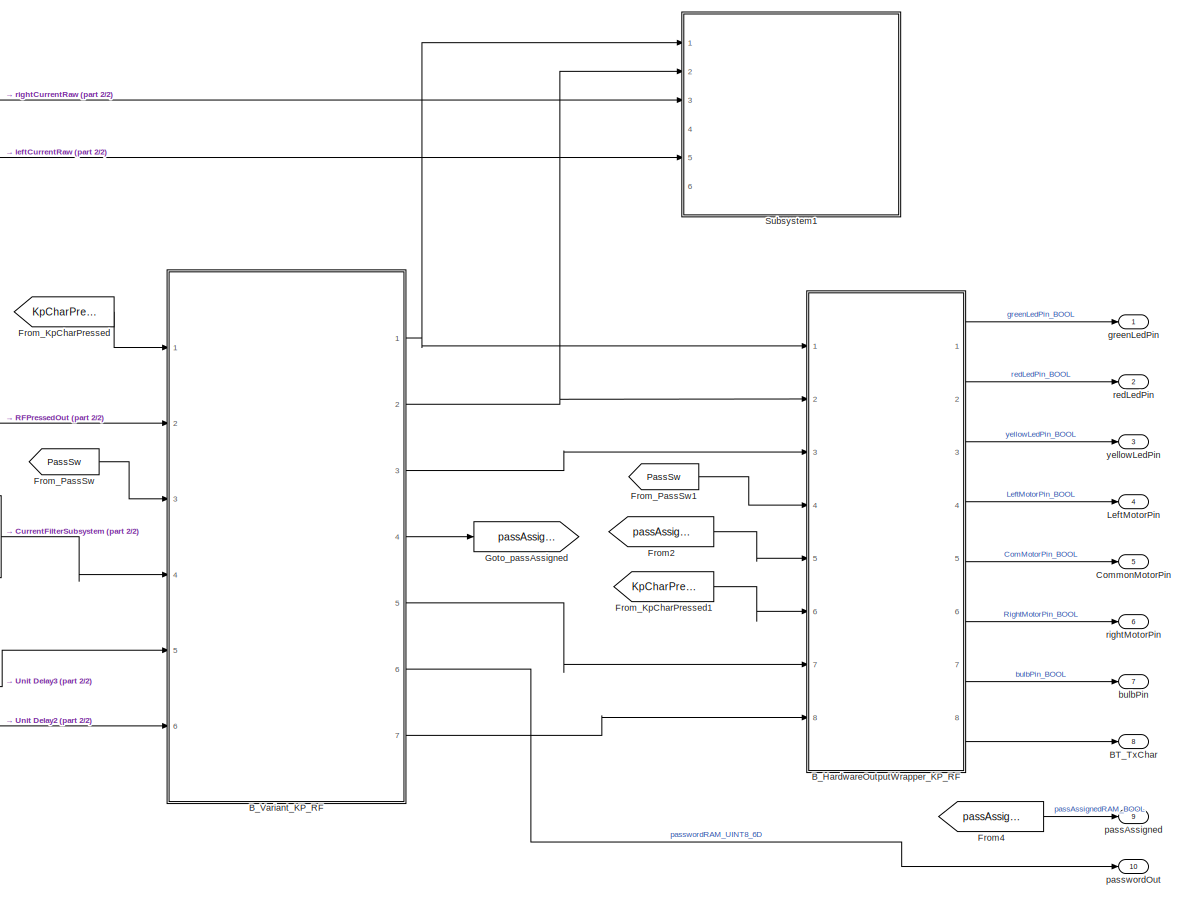
[diagram: root canvas - part 1/2, most of the canvas]
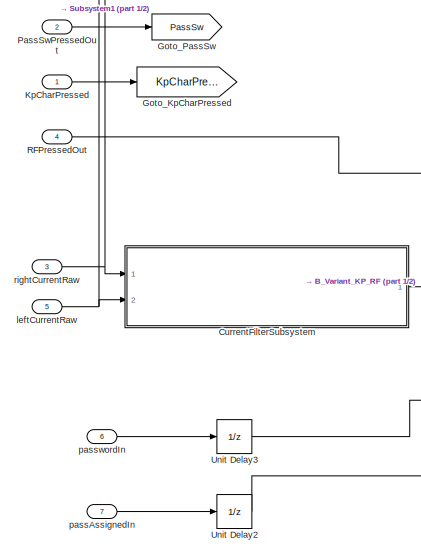
[diagram: root canvas - part 2/2, middle left region]
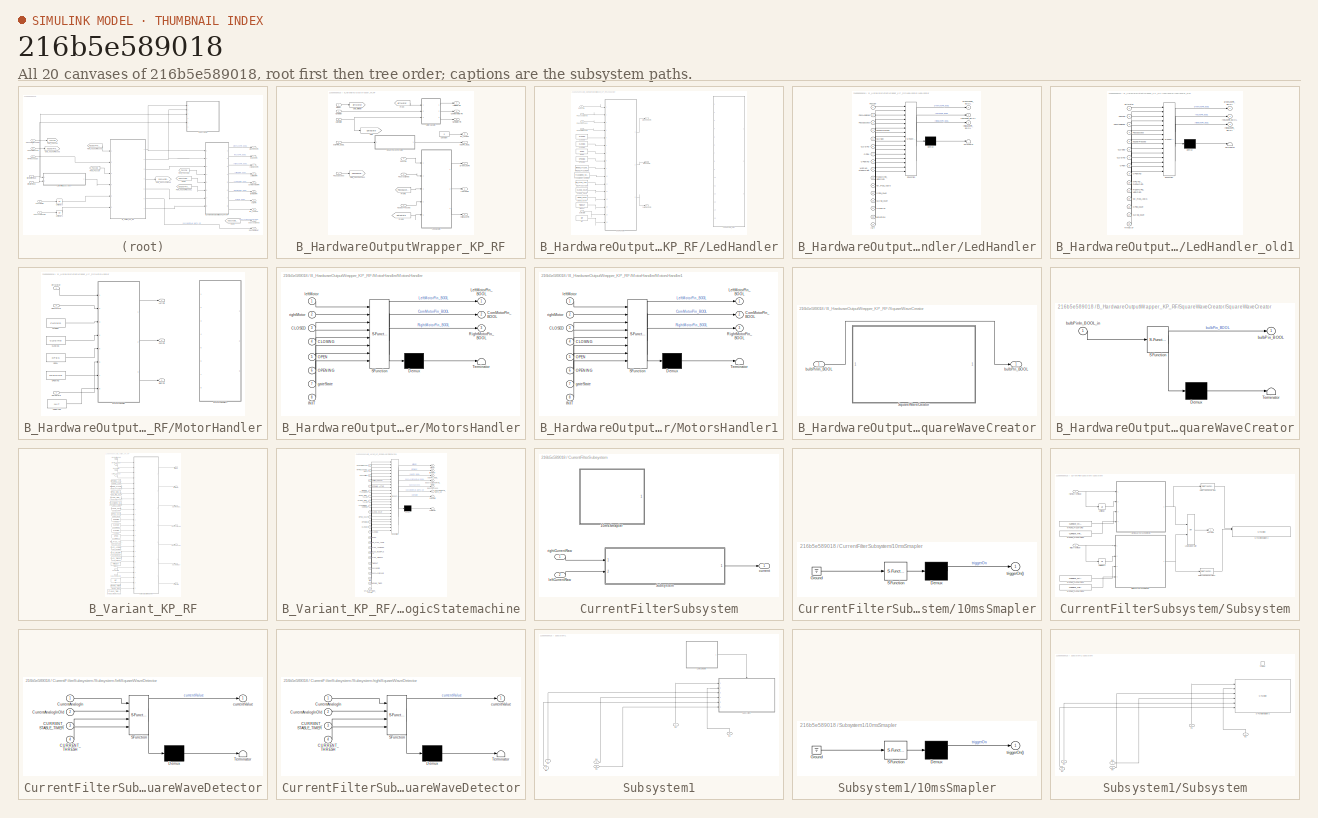
[diagram: thumbnail index - all 20 canvases of the model, root first then tree order]
MODEL slx_216b5e589018
KIND model
CONFIG AbsTol = auto
CONFIG FixedStep = auto
CONFIG MaxStep = auto
CONFIG MinStep = auto
CONFIG RelTol = 1e-3
CONFIG SampleTimeConstraint = Unconstrained
CONFIG Solver = FixedStepDiscrete
CONFIG SolverMode = Auto
CONFIG SolverName = FixedStepDiscrete
CONFIG StartTime = 0.0
CONFIG StopTime = 120
BLOCK [Outport] BT_TxChar
  IconDisplay = Port number
  OutDataTypeStr = double
  Port = 8
  PortDimensions = 1
  SampleTime = [0.001,0]
  SamplingMode = Sample based
  SignalType = real
BLOCK [SubSystem] B_HardwareOutputWrapper_KP_RF
  Ports = [8, 8]
  RequestExecContextInheritance = off
  Variant = off
  VariantControl = Variant2
BLOCK [Outport] B_HardwareOutputWrapper_KP_RF/BT_TxChar
  IconDisplay = Port number
  Port = 8
BLOCK [Outport] B_HardwareOutputWrapper_KP_RF/CommonMotorPin
  IconDisplay = Port number
  Port = 5
BLOCK [Constant] B_HardwareOutputWrapper_KP_RF/Constant
  SampleTime = -1
  Value = 0
BLOCK [From] B_HardwareOutputWrapper_KP_RF/From
  GotoTag = leftMotor
BLOCK [From] B_HardwareOutputWrapper_KP_RF/From2
  GotoTag = gateState
BLOCK [From] B_HardwareOutputWrapper_KP_RF/From6
  GotoTag = PassSuccess
BLOCK [Goto] B_HardwareOutputWrapper_KP_RF/Goto
  GotoTag = gateState
BLOCK [Goto] B_HardwareOutputWrapper_KP_RF/Goto_PassSuccess
  GotoTag = PassSuccess
BLOCK [Goto] B_HardwareOutputWrapper_KP_RF/Goto_leftMotor
  GotoTag = leftMotor
BLOCK [Inport] B_HardwareOutputWrapper_KP_RF/KpCharPressed
  IconDisplay = Port number
  Port = 6
BLOCK [SubSystem] B_HardwareOutputWrapper_KP_RF/LedHandler
  Ports = [5, 3]
  RequestExecContextInheritance = off
  Variant = off
BLOCK [Constant] B_HardwareOutputWrapper_KP_RF/LedHandler/CLOSED
  SampleTime = -1
  Value = CLOSED
BLOCK [Constant] B_HardwareOutputWrapper_KP_RF/LedHandler/CLOSE_CHAR
  SampleTime = -1
  Value = CLOSE_CHAR
BLOCK [Constant] B_HardwareOutputWrapper_KP_RF/LedHandler/CLOSING
  SampleTime = -1
  Value = CLOSING
BLOCK [Constant] B_HardwareOutputWrapper_KP_RF/LedHandler/INIT
  SampleTime = -1
  Value = INIT
BLOCK [Inport] B_HardwareOutputWrapper_KP_RF/LedHandler/KpCharPressed
  IconDisplay = Port number
  Port = 4
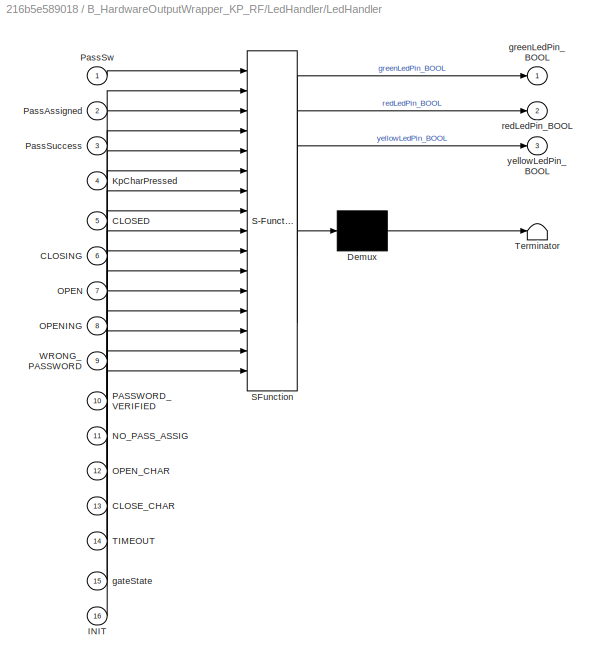
BLOCK [SubSystem] B_HardwareOutputWrapper_KP_RF/LedHandler/LedHandler
  ErrorFcn = Stateflow.Translate.translate
  PermitHierarchicalResolution = ExplicitOnly
  Ports = [16, 3]
  RequestExecContextInheritance = off
  SFBlockType = Chart
  TreatAsAtomicUnit = on
  Variant = off
BLOCK [Demux] B_HardwareOutputWrapper_KP_RF/LedHandler/LedHandler/ Demux 
  Outputs = 1
  Ports = [1, 1]
BLOCK [S-Function] B_HardwareOutputWrapper_KP_RF/LedHandler/LedHandler/ SFunction 
  EnableBusSupport = on
  FunctionName = sf_sfun
  PortCounts = [16 4]
  Ports = [16, 4]
  SFunctionDeploymentMode = off
  Tag = Stateflow S-Function GATE_B 16
BLOCK [Terminator] B_HardwareOutputWrapper_KP_RF/LedHandler/LedHandler/ Terminator 
BLOCK [Inport] B_HardwareOutputWrapper_KP_RF/LedHandler/LedHandler/CLOSED
  IconDisplay = Port number
  Port = 5
BLOCK [Inport] B_HardwareOutputWrapper_KP_RF/LedHandler/LedHandler/CLOSE_CHAR
  IconDisplay = Port number
  Port = 13
BLOCK [Inport] B_HardwareOutputWrapper_KP_RF/LedHandler/LedHandler/CLOSING
  IconDisplay = Port number
  Port = 6
BLOCK [Inport] B_HardwareOutputWrapper_KP_RF/LedHandler/LedHandler/INIT
  IconDisplay = Port number
  Port = 16
BLOCK [Inport] B_HardwareOutputWrapper_KP_RF/LedHandler/LedHandler/KpCharPressed
  IconDisplay = Port number
  Port = 4
BLOCK [Inport] B_HardwareOutputWrapper_KP_RF/LedHandler/LedHandler/NO_PASS_ASSIG
  IconDisplay = Port number
  Port = 11
BLOCK [Inport] B_HardwareOutputWrapper_KP_RF/LedHandler/LedHandler/OPEN
  IconDisplay = Port number
  Port = 7
BLOCK [Inport] B_HardwareOutputWrapper_KP_RF/LedHandler/LedHandler/OPENING
  IconDisplay = Port number
  Port = 8
BLOCK [Inport] B_HardwareOutputWrapper_KP_RF/LedHandler/LedHandler/OPEN_CHAR
  IconDisplay = Port number
  Port = 12
BLOCK [Inport] B_HardwareOutputWrapper_KP_RF/LedHandler/LedHandler/PASSWORD_VERIFIED
  IconDisplay = Port number
  Port = 10
BLOCK [Inport] B_HardwareOutputWrapper_KP_RF/LedHandler/LedHandler/PassAssigned
  IconDisplay = Port number
  Port = 2
BLOCK [Inport] B_HardwareOutputWrapper_KP_RF/LedHandler/LedHandler/PassSuccess
  IconDisplay = Port number
  Port = 3
BLOCK [Inport] B_HardwareOutputWrapper_KP_RF/LedHandler/LedHandler/PassSw
  IconDisplay = Port number
BLOCK [Inport] B_HardwareOutputWrapper_KP_RF/LedHandler/LedHandler/TIMEOUT
  IconDisplay = Port number
  Port = 14
BLOCK [Inport] B_HardwareOutputWrapper_KP_RF/LedHandler/LedHandler/WRONG_PASSWORD
  IconDisplay = Port number
  Port = 9
BLOCK [Inport] B_HardwareOutputWrapper_KP_RF/LedHandler/LedHandler/gateState
  IconDisplay = Port number
  Port = 15
BLOCK [Outport] B_HardwareOutputWrapper_KP_RF/LedHandler/LedHandler/greenLedPin_BOOL
  IconDisplay = Port number
BLOCK [Outport] B_HardwareOutputWrapper_KP_RF/LedHandler/LedHandler/redLedPin_BOOL
  IconDisplay = Port number
  Port = 2
BLOCK [Outport] B_HardwareOutputWrapper_KP_RF/LedHandler/LedHandler/yellowLedPin_BOOL
  IconDisplay = Port number
  Port = 3
BLOCK [SubSystem] B_HardwareOutputWrapper_KP_RF/LedHandler/LedHandler_old1
  Commented = on
  ErrorFcn = Stateflow.Translate.translate
  PermitHierarchicalResolution = ExplicitOnly
  Ports = [15, 3]
  RequestExecContextInheritance = off
  SFBlockType = Chart
  TreatAsAtomicUnit = on
  Variant = off
BLOCK [Demux] B_HardwareOutputWrapper_KP_RF/LedHandler/LedHandler_old1/ Demux 
  Outputs = 1
  Ports = [1, 1]
BLOCK [S-Function] B_HardwareOutputWrapper_KP_RF/LedHandler/LedHandler_old1/ SFunction 
  EnableBusSupport = on
  FunctionName = sf_sfun
  PortCounts = [15 4]
  Ports = [15, 4]
  SFunctionDeploymentMode = off
  Tag = Stateflow S-Function GATE_B 13
BLOCK [Terminator] B_HardwareOutputWrapper_KP_RF/LedHandler/LedHandler_old1/ Terminator 
BLOCK [Inport] B_HardwareOutputWrapper_KP_RF/LedHandler/LedHandler_old1/CLOSED
  IconDisplay = Port number
  Port = 6
BLOCK [Inport] B_HardwareOutputWrapper_KP_RF/LedHandler/LedHandler_old1/CLOSE_CHAR
  IconDisplay = Port number
  Port = 14
BLOCK [Inport] B_HardwareOutputWrapper_KP_RF/LedHandler/LedHandler_old1/CLOSING
  IconDisplay = Port number
  Port = 7
BLOCK [Inport] B_HardwareOutputWrapper_KP_RF/LedHandler/LedHandler_old1/KpCharPressed
  IconDisplay = Port number
  Port = 5
BLOCK [Inport] B_HardwareOutputWrapper_KP_RF/LedHandler/LedHandler_old1/NO_PASS_ASSIG
  IconDisplay = Port number
  Port = 12
BLOCK [Inport] B_HardwareOutputWrapper_KP_RF/LedHandler/LedHandler_old1/OPEN
  IconDisplay = Port number
  Port = 8
BLOCK [Inport] B_HardwareOutputWrapper_KP_RF/LedHandler/LedHandler_old1/OPENING
  IconDisplay = Port number
  Port = 9
BLOCK [Inport] B_HardwareOutputWrapper_KP_RF/LedHandler/LedHandler_old1/OPEN_CHAR
  IconDisplay = Port number
  Port = 13
BLOCK [Inport] B_HardwareOutputWrapper_KP_RF/LedHandler/LedHandler_old1/PASSWORD_VERIFIED
  IconDisplay = Port number
  Port = 11
BLOCK [Inport] B_HardwareOutputWrapper_KP_RF/LedHandler/LedHandler_old1/PassAssigned
  IconDisplay = Port number
  Port = 3
BLOCK [Inport] B_HardwareOutputWrapper_KP_RF/LedHandler/LedHandler_old1/PassSuccess
  IconDisplay = Port number
  Port = 4
BLOCK [Inport] B_HardwareOutputWrapper_KP_RF/LedHandler/LedHandler_old1/PassSw
  IconDisplay = Port number
  Port = 2
BLOCK [Inport] B_HardwareOutputWrapper_KP_RF/LedHandler/LedHandler_old1/TIMEOUT
  IconDisplay = Port number
  Port = 15
BLOCK [Inport] B_HardwareOutputWrapper_KP_RF/LedHandler/LedHandler_old1/WRONG_PASSWORD
  IconDisplay = Port number
  Port = 10
BLOCK [Outport] B_HardwareOutputWrapper_KP_RF/LedHandler/LedHandler_old1/greenLedPin_BOOL
  IconDisplay = Port number
BLOCK [Inport] B_HardwareOutputWrapper_KP_RF/LedHandler/LedHandler_old1/leftMotor
  IconDisplay = Port number
BLOCK [Outport] B_HardwareOutputWrapper_KP_RF/LedHandler/LedHandler_old1/redLedPin_BOOL
  IconDisplay = Port number
  Port = 2
BLOCK [Outport] B_HardwareOutputWrapper_KP_RF/LedHandler/LedHandler_old1/yellowLedPin_BOOL
  IconDisplay = Port number
  Port = 3
BLOCK [Constant] B_HardwareOutputWrapper_KP_RF/LedHandler/NO_PASS_ASSIG
  SampleTime = -1
  Value = NO_PASS_ASSIG
BLOCK [Constant] B_HardwareOutputWrapper_KP_RF/LedHandler/OPEN
  SampleTime = -1
  Value = OPEN
BLOCK [Constant] B_HardwareOutputWrapper_KP_RF/LedHandler/OPENING
  SampleTime = -1
  Value = OPENING
BLOCK [Constant] B_HardwareOutputWrapper_KP_RF/LedHandler/OPEN_CHAR
  SampleTime = -1
  Value = OPEN_CHAR
BLOCK [Constant] B_HardwareOutputWrapper_KP_RF/LedHandler/PASSWORD_VERIFIED
  SampleTime = -1
  Value = PASSWORD_VERIFIED
BLOCK [Inport] B_HardwareOutputWrapper_KP_RF/LedHandler/PassAssigned
  IconDisplay = Port number
  Port = 2
BLOCK [Inport] B_HardwareOutputWrapper_KP_RF/LedHandler/PassSuccess
  IconDisplay = Port number
  Port = 3
BLOCK [Constant] B_HardwareOutputWrapper_KP_RF/LedHandler/TIMEOUT
  SampleTime = -1
  Value = TIMEOUT
BLOCK [Constant] B_HardwareOutputWrapper_KP_RF/LedHandler/WRONG_PASSWORD
  SampleTime = -1
  Value = WRONG_PASSWORD
BLOCK [Inport] B_HardwareOutputWrapper_KP_RF/LedHandler/gateState
  IconDisplay = Port number
  Port = 5
BLOCK [Outport] B_HardwareOutputWrapper_KP_RF/LedHandler/greenLedPin
  IconDisplay = Port number
BLOCK [Inport] B_HardwareOutputWrapper_KP_RF/LedHandler/passSw
  IconDisplay = Port number
BLOCK [Outport] B_HardwareOutputWrapper_KP_RF/LedHandler/redLedPin
  IconDisplay = Port number
  Port = 2
BLOCK [Outport] B_HardwareOutputWrapper_KP_RF/LedHandler/yellowLedPin
  IconDisplay = Port number
  Port = 3
BLOCK [Outport] B_HardwareOutputWrapper_KP_RF/LeftMotorPin
  IconDisplay = Port number
  Port = 4
BLOCK [SubSystem] B_HardwareOutputWrapper_KP_RF/MotorHandler
  Ports = [3, 3]
  RequestExecContextInheritance = off
  Variant = off
BLOCK [Constant] B_HardwareOutputWrapper_KP_RF/MotorHandler/CLOSED
  SampleTime = -1
  Value = CLOSED
BLOCK [Constant] B_HardwareOutputWrapper_KP_RF/MotorHandler/CLOSING
  SampleTime = -1
  Value = CLOSING
BLOCK [Outport] B_HardwareOutputWrapper_KP_RF/MotorHandler/ComPin
  IconDisplay = Port number
  Port = 2
BLOCK [Outport] B_HardwareOutputWrapper_KP_RF/MotorHandler/LeftPin
  IconDisplay = Port number
BLOCK [SubSystem] B_HardwareOutputWrapper_KP_RF/MotorHandler/MotorsHandler
  ErrorFcn = Stateflow.Translate.translate
  PermitHierarchicalResolution = ExplicitOnly
  Ports = [8, 3]
  RequestExecContextInheritance = off
  SFBlockType = Chart
  TreatAsAtomicUnit = on
  Variant = off
BLOCK [Demux] B_HardwareOutputWrapper_KP_RF/MotorHandler/MotorsHandler/ Demux 
  Outputs = 1
  Ports = [1, 1]
BLOCK [S-Function] B_HardwareOutputWrapper_KP_RF/MotorHandler/MotorsHandler/ SFunction 
  EnableBusSupport = on
  FunctionName = sf_sfun
  PortCounts = [8 4]
  Ports = [8, 4]
  SFunctionDeploymentMode = off
  Tag = Stateflow S-Function GATE_B 19
BLOCK [Terminator] B_HardwareOutputWrapper_KP_RF/MotorHandler/MotorsHandler/ Terminator 
BLOCK [Inport] B_HardwareOutputWrapper_KP_RF/MotorHandler/MotorsHandler/CLOSED
  IconDisplay = Port number
  Port = 3
BLOCK [Inport] B_HardwareOutputWrapper_KP_RF/MotorHandler/MotorsHandler/CLOSING
  IconDisplay = Port number
  Port = 4
BLOCK [Outport] B_HardwareOutputWrapper_KP_RF/MotorHandler/MotorsHandler/ComMotorPin_BOOL
  IconDisplay = Port number
  Port = 2
BLOCK [Inport] B_HardwareOutputWrapper_KP_RF/MotorHandler/MotorsHandler/INIT
  IconDisplay = Port number
  Port = 8
BLOCK [Outport] B_HardwareOutputWrapper_KP_RF/MotorHandler/MotorsHandler/LeftMotorPin_BOOL
  IconDisplay = Port number
BLOCK [Inport] B_HardwareOutputWrapper_KP_RF/MotorHandler/MotorsHandler/OPEN
  IconDisplay = Port number
  Port = 5
BLOCK [Inport] B_HardwareOutputWrapper_KP_RF/MotorHandler/MotorsHandler/OPENING
  IconDisplay = Port number
  Port = 6
BLOCK [Outport] B_HardwareOutputWrapper_KP_RF/MotorHandler/MotorsHandler/RightMotorPin_BOOL
  IconDisplay = Port number
  Port = 3
BLOCK [Inport] B_HardwareOutputWrapper_KP_RF/MotorHandler/MotorsHandler/gateState
  IconDisplay = Port number
  Port = 7
BLOCK [Inport] B_HardwareOutputWrapper_KP_RF/MotorHandler/MotorsHandler/leftMotor
  IconDisplay = Port number
BLOCK [Inport] B_HardwareOutputWrapper_KP_RF/MotorHandler/MotorsHandler/rightMotor
  IconDisplay = Port number
  Port = 2
BLOCK [SubSystem] B_HardwareOutputWrapper_KP_RF/MotorHandler/MotorsHandler1
  Commented = on
  ErrorFcn = Stateflow.Translate.translate
  PermitHierarchicalResolution = ExplicitOnly
  Ports = [8, 3]
  RequestExecContextInheritance = off
  SFBlockType = Chart
  TreatAsAtomicUnit = on
  Variant = off
BLOCK [Demux] B_HardwareOutputWrapper_KP_RF/MotorHandler/MotorsHandler1/ Demux 
  Outputs = 1
  Ports = [1, 1]
BLOCK [S-Function] B_HardwareOutputWrapper_KP_RF/MotorHandler/MotorsHandler1/ SFunction 
  EnableBusSupport = on
  FunctionName = sf_sfun
  PortCounts = [8 4]
  Ports = [8, 4]
  SFunctionDeploymentMode = off
  Tag = Stateflow S-Function GATE_B 2
BLOCK [Terminator] B_HardwareOutputWrapper_KP_RF/MotorHandler/MotorsHandler1/ Terminator 
BLOCK [Inport] B_HardwareOutputWrapper_KP_RF/MotorHandler/MotorsHandler1/CLOSED
  IconDisplay = Port number
  Port = 3
BLOCK [Inport] B_HardwareOutputWrapper_KP_RF/MotorHandler/MotorsHandler1/CLOSING
  IconDisplay = Port number
  Port = 4
BLOCK [Outport] B_HardwareOutputWrapper_KP_RF/MotorHandler/MotorsHandler1/ComMotorPin_BOOL
  IconDisplay = Port number
  Port = 2
BLOCK [Inport] B_HardwareOutputWrapper_KP_RF/MotorHandler/MotorsHandler1/INIT
  IconDisplay = Port number
  Port = 8
BLOCK [Outport] B_HardwareOutputWrapper_KP_RF/MotorHandler/MotorsHandler1/LeftMotorPin_BOOL
  IconDisplay = Port number
BLOCK [Inport] B_HardwareOutputWrapper_KP_RF/MotorHandler/MotorsHandler1/OPEN
  IconDisplay = Port number
  Port = 5
BLOCK [Inport] B_HardwareOutputWrapper_KP_RF/MotorHandler/MotorsHandler1/OPENING
  IconDisplay = Port number
  Port = 6
BLOCK [Outport] B_HardwareOutputWrapper_KP_RF/MotorHandler/MotorsHandler1/RightMotorPin_BOOL
  IconDisplay = Port number
  Port = 3
BLOCK [Inport] B_HardwareOutputWrapper_KP_RF/MotorHandler/MotorsHandler1/gateState
  IconDisplay = Port number
  Port = 7
BLOCK [Inport] B_HardwareOutputWrapper_KP_RF/MotorHandler/MotorsHandler1/leftMotor
  IconDisplay = Port number
BLOCK [Inport] B_HardwareOutputWrapper_KP_RF/MotorHandler/MotorsHandler1/rightMotor
  IconDisplay = Port number
  Port = 2
BLOCK [Constant] B_HardwareOutputWrapper_KP_RF/MotorHandler/OPEN
  SampleTime = -1
  Value = OPEN
BLOCK [Constant] B_HardwareOutputWrapper_KP_RF/MotorHandler/OPENING
  SampleTime = -1
  Value = OPENING
BLOCK [Constant] B_HardwareOutputWrapper_KP_RF/MotorHandler/OPENING1
  SampleTime = -1
  Value = INIT
BLOCK [Outport] B_HardwareOutputWrapper_KP_RF/MotorHandler/RightPin
  IconDisplay = Port number
  Port = 3
BLOCK [Inport] B_HardwareOutputWrapper_KP_RF/MotorHandler/gateState
  IconDisplay = Port number
  Port = 3
BLOCK [Inport] B_HardwareOutputWrapper_KP_RF/MotorHandler/leftMotor
  IconDisplay = Port number
BLOCK [Inport] B_HardwareOutputWrapper_KP_RF/MotorHandler/rightMotor
  IconDisplay = Port number
  Port = 2
BLOCK [Inport] B_HardwareOutputWrapper_KP_RF/PassAssigned
  IconDisplay = Port number
  Port = 5
BLOCK [Inport] B_HardwareOutputWrapper_KP_RF/PassSuccess
  IconDisplay = Port number
  Port = 7
BLOCK [SubSystem] B_HardwareOutputWrapper_KP_RF/SquareWaveCreator
  Ports = [1, 1]
  RequestExecContextInheritance = off
  Variant = off
BLOCK [SubSystem] B_HardwareOutputWrapper_KP_RF/SquareWaveCreator/SquareWaveCreator
  Commented = on
  ErrorFcn = Stateflow.Translate.translate
  PermitHierarchicalResolution = ExplicitOnly
  Ports = [1, 1]
  RequestExecContextInheritance = off
  SFBlockType = Chart
  TreatAsAtomicUnit = on
  Variant = off
BLOCK [Demux] B_HardwareOutputWrapper_KP_RF/SquareWaveCreator/SquareWaveCreator/ Demux 
  Outputs = 1
  Ports = [1, 1]
BLOCK [S-Function] B_HardwareOutputWrapper_KP_RF/SquareWaveCreator/SquareWaveCreator/ SFunction 
  EnableBusSupport = on
  FunctionName = sf_sfun
  PortCounts = [1 2]
  Ports = [1, 2]
  SFunctionDeploymentMode = off
  Tag = Stateflow S-Function GATE_B 9
BLOCK [Terminator] B_HardwareOutputWrapper_KP_RF/SquareWaveCreator/SquareWaveCreator/ Terminator 
BLOCK [Inport] B_HardwareOutputWrapper_KP_RF/SquareWaveCreator/SquareWaveCreator/bulbPinIn_BOOL_in
  IconDisplay = Port number
BLOCK [Outport] B_HardwareOutputWrapper_KP_RF/SquareWaveCreator/SquareWaveCreator/bulbPin_BOOL
  IconDisplay = Port number
BLOCK [Inport] B_HardwareOutputWrapper_KP_RF/SquareWaveCreator/bulbPinIn_BOOL
  IconDisplay = Port number
BLOCK [Outport] B_HardwareOutputWrapper_KP_RF/SquareWaveCreator/bulbPin_BOOL
  IconDisplay = Port number
BLOCK [Inport] B_HardwareOutputWrapper_KP_RF/bulbPinIn_BOOL
  IconDisplay = Port number
  Port = 3
BLOCK [Outport] B_HardwareOutputWrapper_KP_RF/bulbPin_BOOL
  IconDisplay = Port number
  Port = 7
BLOCK [Inport] B_HardwareOutputWrapper_KP_RF/gateState
  IconDisplay = Port number
  Port = 8
BLOCK [Outport] B_HardwareOutputWrapper_KP_RF/greenLedPin
  IconDisplay = Port number
BLOCK [Inport] B_HardwareOutputWrapper_KP_RF/leftMotor
  IconDisplay = Port number
BLOCK [Inport] B_HardwareOutputWrapper_KP_RF/passSw
  IconDisplay = Port number
  Port = 4
BLOCK [Outport] B_HardwareOutputWrapper_KP_RF/redLedPin
  IconDisplay = Port number
  Port = 2
BLOCK [Inport] B_HardwareOutputWrapper_KP_RF/rightMotor
  IconDisplay = Port number
  Port = 2
BLOCK [Outport] B_HardwareOutputWrapper_KP_RF/rightMotorPin
  IconDisplay = Port number
  Port = 6
BLOCK [Outport] B_HardwareOutputWrapper_KP_RF/yellowLedPin
  IconDisplay = Port number
  Port = 3
BLOCK [SubSystem] B_Variant_KP_RF
  Ports = [6, 7]
  RequestExecContextInheritance = off
  Variant = off
  VariantControl = Variant2
BLOCK [Constant] B_Variant_KP_RF/CLOSED
  SampleTime = -1
  Value = CLOSED
BLOCK [Constant] B_Variant_KP_RF/CLOSE_CHAR
  SampleTime = -1
  Value = CLOSE_CHAR
BLOCK [Constant] B_Variant_KP_RF/CLOSE_SIDE_VALUE
  SampleTime = -1
  Value = CLOSE_SIDE_VALUE
BLOCK [Constant] B_Variant_KP_RF/CLOSING
  SampleTime = -1
  Value = CLOSING
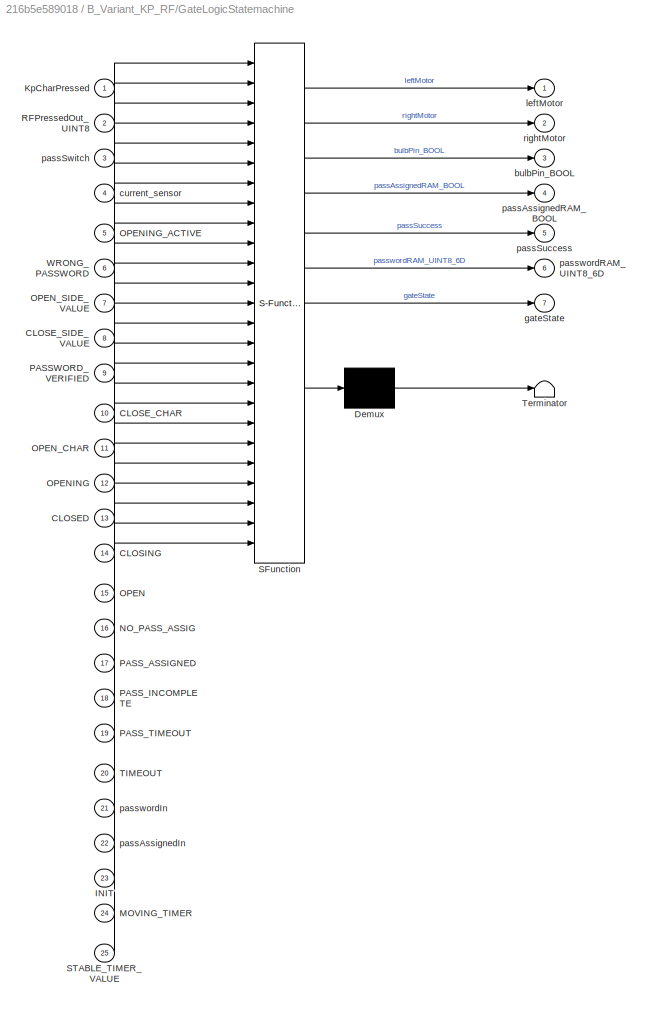
BLOCK [SubSystem] B_Variant_KP_RF/GateLogicStatemachine
  ErrorFcn = Stateflow.Translate.translate
  PermitHierarchicalResolution = ExplicitOnly
  Ports = [25, 7]
  RequestExecContextInheritance = off
  SFBlockType = Chart
  TreatAsAtomicUnit = on
  Variant = off
BLOCK [Demux] B_Variant_KP_RF/GateLogicStatemachine/ Demux 
  Outputs = 1
  Ports = [1, 1]
BLOCK [S-Function] B_Variant_KP_RF/GateLogicStatemachine/ SFunction 
  EnableBusSupport = on
  FunctionName = sf_sfun
  PortCounts = [25 8]
  Ports = [25, 8]
  SFunctionDeploymentMode = off
  Tag = Stateflow S-Function GATE_B 20
BLOCK [Terminator] B_Variant_KP_RF/GateLogicStatemachine/ Terminator 
BLOCK [Inport] B_Variant_KP_RF/GateLogicStatemachine/CLOSED
  IconDisplay = Port number
  Port = 13
BLOCK [Inport] B_Variant_KP_RF/GateLogicStatemachine/CLOSE_CHAR
  IconDisplay = Port number
  Port = 10
BLOCK [Inport] B_Variant_KP_RF/GateLogicStatemachine/CLOSE_SIDE_VALUE
  IconDisplay = Port number
  Port = 8
BLOCK [Inport] B_Variant_KP_RF/GateLogicStatemachine/CLOSING
  IconDisplay = Port number
  Port = 14
BLOCK [Inport] B_Variant_KP_RF/GateLogicStatemachine/INIT
  IconDisplay = Port number
  Port = 23
BLOCK [Inport] B_Variant_KP_RF/GateLogicStatemachine/KpCharPressed
  IconDisplay = Port number
BLOCK [Inport] B_Variant_KP_RF/GateLogicStatemachine/MOVING_TIMER
  IconDisplay = Port number
  Port = 24
BLOCK [Inport] B_Variant_KP_RF/GateLogicStatemachine/NO_PASS_ASSIG
  IconDisplay = Port number
  Port = 16
BLOCK [Inport] B_Variant_KP_RF/GateLogicStatemachine/OPEN
  IconDisplay = Port number
  Port = 15
BLOCK [Inport] B_Variant_KP_RF/GateLogicStatemachine/OPENING
  IconDisplay = Port number
  Port = 12
BLOCK [Inport] B_Variant_KP_RF/GateLogicStatemachine/OPENING_ACTIVE
  IconDisplay = Port number
  Port = 5
BLOCK [Inport] B_Variant_KP_RF/GateLogicStatemachine/OPEN_CHAR
  IconDisplay = Port number
  Port = 11
BLOCK [Inport] B_Variant_KP_RF/GateLogicStatemachine/OPEN_SIDE_VALUE
  IconDisplay = Port number
  Port = 7
BLOCK [Inport] B_Variant_KP_RF/GateLogicStatemachine/PASSWORD_VERIFIED
  IconDisplay = Port number
  Port = 9
BLOCK [Inport] B_Variant_KP_RF/GateLogicStatemachine/PASS_ASSIGNED
  IconDisplay = Port number
  Port = 17
BLOCK [Inport] B_Variant_KP_RF/GateLogicStatemachine/PASS_INCOMPLETE
  IconDisplay = Port number
  Port = 18
BLOCK [Inport] B_Variant_KP_RF/GateLogicStatemachine/PASS_TIMEOUT
  IconDisplay = Port number
  Port = 19
BLOCK [Inport] B_Variant_KP_RF/GateLogicStatemachine/RFPressedOut_UINT8
  IconDisplay = Port number
  Port = 2
BLOCK [Inport] B_Variant_KP_RF/GateLogicStatemachine/STABLE_TIMER_VALUE
  IconDisplay = Port number
  Port = 25
BLOCK [Inport] B_Variant_KP_RF/GateLogicStatemachine/TIMEOUT
  IconDisplay = Port number
  Port = 20
BLOCK [Inport] B_Variant_KP_RF/GateLogicStatemachine/WRONG_PASSWORD
  IconDisplay = Port number
  Port = 6
BLOCK [Outport] B_Variant_KP_RF/GateLogicStatemachine/bulbPin_BOOL
  IconDisplay = Port number
  Port = 3
BLOCK [Inport] B_Variant_KP_RF/GateLogicStatemachine/current_sensor
  IconDisplay = Port number
  Port = 4
BLOCK [Outport] B_Variant_KP_RF/GateLogicStatemachine/gateState
  IconDisplay = Port number
  Port = 7
BLOCK [Outport] B_Variant_KP_RF/GateLogicStatemachine/leftMotor
  IconDisplay = Port number
BLOCK [Inport] B_Variant_KP_RF/GateLogicStatemachine/passAssignedIn
  IconDisplay = Port number
  Port = 22
BLOCK [Outport] B_Variant_KP_RF/GateLogicStatemachine/passAssignedRAM_BOOL
  IconDisplay = Port number
  Port = 4
BLOCK [Outport] B_Variant_KP_RF/GateLogicStatemachine/passSuccess
  IconDisplay = Port number
  Port = 5
BLOCK [Inport] B_Variant_KP_RF/GateLogicStatemachine/passSwitch
  IconDisplay = Port number
  Port = 3
BLOCK [Inport] B_Variant_KP_RF/GateLogicStatemachine/passwordIn
  IconDisplay = Port number
  Port = 21
BLOCK [Outport] B_Variant_KP_RF/GateLogicStatemachine/passwordRAM_UINT8_6D
  IconDisplay = Port number
  Port = 6
BLOCK [Outport] B_Variant_KP_RF/GateLogicStatemachine/rightMotor
  IconDisplay = Port number
  Port = 2
BLOCK [Constant] B_Variant_KP_RF/INIT
  SampleTime = -1
  Value = INIT
BLOCK [Inport] B_Variant_KP_RF/KpCharPressed
  IconDisplay = Port number
BLOCK [Constant] B_Variant_KP_RF/MOVING_TIMER
  SampleTime = -1
  Value = MOVING_TIMER
BLOCK [Constant] B_Variant_KP_RF/NO_PASS_ASSIG
  SampleTime = -1
  Value = NO_PASS_ASSIG
BLOCK [Constant] B_Variant_KP_RF/OPEN
  SampleTime = -1
  Value = OPEN
BLOCK [Constant] B_Variant_KP_RF/OPENING
  SampleTime = -1
  Value = OPENING
BLOCK [Constant] B_Variant_KP_RF/OPENING_ACTIVE
  SampleTime = -1
  Value = OPENING_ACTIVE
BLOCK [Constant] B_Variant_KP_RF/OPEN_CHAR
  SampleTime = -1
  Value = OPEN_CHAR
BLOCK [Constant] B_Variant_KP_RF/OPEN_SIDE_VALUE
  SampleTime = -1
  Value = OPEN_SIDE_VALUE
BLOCK [Constant] B_Variant_KP_RF/PASSWORD_VERIFIED
  SampleTime = -1
  Value = PASSWORD_VERIFIED
BLOCK [Constant] B_Variant_KP_RF/PASS_ASSIGNED
  SampleTime = -1
  Value = PASS_ASSIGNED
BLOCK [Constant] B_Variant_KP_RF/PASS_INCOMPLETE
  SampleTime = -1
  Value = PASS_INCOMPLETE
BLOCK [Constant] B_Variant_KP_RF/PASS_TIMEOUT
  SampleTime = -1
  Value = PASS_TIMEOUT
BLOCK [Outport] B_Variant_KP_RF/PassAssigned
  IconDisplay = Port number
  Port = 4
BLOCK [Outport] B_Variant_KP_RF/PassSuccess
  IconDisplay = Port number
  Port = 5
BLOCK [Inport] B_Variant_KP_RF/RFPressedOut
  IconDisplay = Port number
  Port = 2
BLOCK [Constant] B_Variant_KP_RF/STABLE_TIMER_VALUE
  SampleTime = -1
  Value = STABLE_TIMER_VALUE
BLOCK [Constant] B_Variant_KP_RF/TIMEOUT
  SampleTime = -1
  Value = TIMEOUT
BLOCK [Constant] B_Variant_KP_RF/WRONG_PASSWORD
  SampleTime = -1
  Value = WRONG_PASSWORD
BLOCK [Outport] B_Variant_KP_RF/bulbPin_BOOL
  IconDisplay = Port number
  Port = 3
BLOCK [Inport] B_Variant_KP_RF/current_sensor
  IconDisplay = Port number
  Port = 4
BLOCK [Outport] B_Variant_KP_RF/gateState
  IconDisplay = Port number
  Port = 7
BLOCK [Outport] B_Variant_KP_RF/leftMotor
  IconDisplay = Port number
BLOCK [Inport] B_Variant_KP_RF/passAssignedIn
  IconDisplay = Port number
  Port = 6
BLOCK [Inport] B_Variant_KP_RF/passSwitch
  IconDisplay = Port number
  Port = 3
BLOCK [Inport] B_Variant_KP_RF/passwordIn
  IconDisplay = Port number
  Port = 5
BLOCK [Outport] B_Variant_KP_RF/passwordOut
  IconDisplay = Port number
  Port = 6
BLOCK [Outport] B_Variant_KP_RF/rightMotor
  IconDisplay = Port number
  Port = 2
BLOCK [Outport] CommonMotorPin
  IconDisplay = Port number
  OutDataTypeStr = boolean
  Port = 5
  PortDimensions = 1
  SampleTime = [0.001,0]
  SamplingMode = Sample based
  SignalType = real
BLOCK [SubSystem] CurrentFilterSubsystem
  Ports = [2, 1]
  RequestExecContextInheritance = off
  Variant = off
BLOCK [SubSystem] CurrentFilterSubsystem/10msSmapler
  Commented = on
  ErrorFcn = Stateflow.Translate.translate
  PermitHierarchicalResolution = ExplicitOnly
  Ports = [0, 1]
  RequestExecContextInheritance = off
  SFBlockType = Chart
  TreatAsAtomicUnit = on
  Variant = off
BLOCK [Demux] CurrentFilterSubsystem/10msSmapler/ Demux 
  Outputs = 1
  Ports = [1, 1]
BLOCK [Ground] CurrentFilterSubsystem/10msSmapler/ Ground 
BLOCK [S-Function] CurrentFilterSubsystem/10msSmapler/ SFunction 
  EnableBusSupport = on
  FunctionName = sf_sfun
  PortCounts = [1 1]
  Ports = [1, 1]
  SFunctionDeploymentMode = off
  Tag = Stateflow S-Function GATE_B 21
BLOCK [Outport] CurrentFilterSubsystem/10msSmapler/triggerOn()
  IconDisplay = Port number
BLOCK [SubSystem] CurrentFilterSubsystem/Subsystem
  Ports = [2, 1]
  RequestExecContextInheritance = off
  Variant = off
BLOCK [DataTypeConversion] CurrentFilterSubsystem/Subsystem/Data Type Conversion
  OutDataTypeStr = uint16
  RndMeth = Floor
  SaturateOnIntegerOverflow = off
BLOCK [DataTypeConversion] CurrentFilterSubsystem/Subsystem/Data Type Conversion1
  OutDataTypeStr = uint16
  RndMeth = Floor
  SaturateOnIntegerOverflow = off
BLOCK [Logic] CurrentFilterSubsystem/Subsystem/Logical Operator
  AllPortsSameDT = off
  Operator = OR
  OutDataTypeStr = boolean
  Ports = [2, 1]
BLOCK [S-Function] CurrentFilterSubsystem/Subsystem/S-Function Builder2
  Commented = on
  CopyFcn = set_param(gcbh,'LinkStatus','none')
  EnableBusSupport = off
  FunctionName = printingBlockMotor
  InitFcn = try, set_param(gcb,'FunctionName','printingBlockMotor'), end
  OpenFcn = sfunctionwizard(gcbh)
  Ports = [6]
  PreSaveFcn = try, set_param(gcb,'FunctionName','printingBlockMotor'), end
  SFunctionDeploymentMode = off
  SFunctionModules = printingBlockMotor_wrapper
BLOCK [UnitDelay] CurrentFilterSubsystem/Subsystem/Unit Delay
  InputProcessing = Elements as channels (sample based)
  SampleTime = -1
BLOCK [UnitDelay] CurrentFilterSubsystem/Subsystem/Unit Delay1
  InputProcessing = Elements as channels (sample based)
  SampleTime = -1
BLOCK [Constant] CurrentFilterSubsystem/Subsystem/WRONG_PASSWORD
  SampleTime = -1
  Value = CURRENT_STABLE_TIMER
BLOCK [Constant] CurrentFilterSubsystem/Subsystem/WRONG_PASSWORD1
  SampleTime = -1
  Value = CURRENT_STABLE_TIMER
BLOCK [Constant] CurrentFilterSubsystem/Subsystem/WRONG_PASSWORD2
  SampleTime = -1
  Value = CURRENT_THRESH
BLOCK [Constant] CurrentFilterSubsystem/Subsystem/WRONG_PASSWORD3
  SampleTime = -1
  Value = CURRENT_THRESH
BLOCK [Outport] CurrentFilterSubsystem/Subsystem/current
  IconDisplay = Port number
BLOCK [Inport] CurrentFilterSubsystem/Subsystem/leftCurrentRaw
  IconDisplay = Port number
  Port = 2
BLOCK [SubSystem] CurrentFilterSubsystem/Subsystem/leftSquareWaveDetector
  ErrorFcn = Stateflow.Translate.translate
  PermitHierarchicalResolution = ExplicitOnly
  Ports = [4, 1]
  RequestExecContextInheritance = off
  SFBlockType = Chart
  TreatAsAtomicUnit = on
  Variant = off
BLOCK [Demux] CurrentFilterSubsystem/Subsystem/leftSquareWaveDetector/ Demux 
  Outputs = 1
  Ports = [1, 1]
BLOCK [S-Function] CurrentFilterSubsystem/Subsystem/leftSquareWaveDetector/ SFunction 
  EnableBusSupport = on
  FunctionName = sf_sfun
  PortCounts = [4 2]
  Ports = [4, 2]
  SFunctionDeploymentMode = off
  Tag = Stateflow S-Function GATE_B 1
BLOCK [Terminator] CurrentFilterSubsystem/Subsystem/leftSquareWaveDetector/ Terminator 
BLOCK [Inport] CurrentFilterSubsystem/Subsystem/leftSquareWaveDetector/CURRENT_STABLE_TIMER
  IconDisplay = Port number
  Port = 3
BLOCK [Inport] CurrentFilterSubsystem/Subsystem/leftSquareWaveDetector/CURRENT_THRESH
  IconDisplay = Port number
  Port = 4
BLOCK [Inport] CurrentFilterSubsystem/Subsystem/leftSquareWaveDetector/CurrentAnalogIn
  IconDisplay = Port number
BLOCK [Inport] CurrentFilterSubsystem/Subsystem/leftSquareWaveDetector/CurrentAnalogInOld
  IconDisplay = Port number
  Port = 2
BLOCK [Outport] CurrentFilterSubsystem/Subsystem/leftSquareWaveDetector/currentValue
  IconDisplay = Port number
BLOCK [Inport] CurrentFilterSubsystem/Subsystem/rightCurrentRaw
  IconDisplay = Port number
BLOCK [SubSystem] CurrentFilterSubsystem/Subsystem/rightSquareWaveDetector
  ErrorFcn = Stateflow.Translate.translate
  PermitHierarchicalResolution = ExplicitOnly
  Ports = [4, 1]
  RequestExecContextInheritance = off
  SFBlockType = Chart
  TreatAsAtomicUnit = on
  Variant = off
BLOCK [Demux] CurrentFilterSubsystem/Subsystem/rightSquareWaveDetector/ Demux 
  Outputs = 1
  Ports = [1, 1]
BLOCK [S-Function] CurrentFilterSubsystem/Subsystem/rightSquareWaveDetector/ SFunction 
  EnableBusSupport = on
  FunctionName = sf_sfun
  PortCounts = [4 2]
  Ports = [4, 2]
  SFunctionDeploymentMode = off
  Tag = Stateflow S-Function GATE_B 22
BLOCK [Terminator] CurrentFilterSubsystem/Subsystem/rightSquareWaveDetector/ Terminator 
BLOCK [Inport] CurrentFilterSubsystem/Subsystem/rightSquareWaveDetector/CURRENT_STABLE_TIMER
  IconDisplay = Port number
  Port = 3
BLOCK [Inport] CurrentFilterSubsystem/Subsystem/rightSquareWaveDetector/CURRENT_THRESH
  IconDisplay = Port number
  Port = 4
BLOCK [Inport] CurrentFilterSubsystem/Subsystem/rightSquareWaveDetector/CurrentAnalogIn
  IconDisplay = Port number
BLOCK [Inport] CurrentFilterSubsystem/Subsystem/rightSquareWaveDetector/CurrentAnalogInOld
  IconDisplay = Port number
  Port = 2
BLOCK [Outport] CurrentFilterSubsystem/Subsystem/rightSquareWaveDetector/currentValue
  IconDisplay = Port number
BLOCK [Outport] CurrentFilterSubsystem/current
  IconDisplay = Port number
BLOCK [Inport] CurrentFilterSubsystem/leftCurrentRaw
  IconDisplay = Port number
  Port = 2
BLOCK [Inport] CurrentFilterSubsystem/rightCurrentRaw
  IconDisplay = Port number
BLOCK [From] From2
  GotoTag = passAssigned
BLOCK [From] From4
  GotoTag = passAssigned
BLOCK [From] From_KpCharPressed
  GotoTag = KpCharPressed
BLOCK [From] From_KpCharPressed1
  GotoTag = KpCharPressed
BLOCK [From] From_PassSw
  GotoTag = PassSw
BLOCK [From] From_PassSw1
  GotoTag = PassSw
BLOCK [Goto] Goto_KpCharPressed
  GotoTag = KpCharPressed
BLOCK [Goto] Goto_PassSw
  GotoTag = PassSw
BLOCK [Goto] Goto_passAssigned
  GotoTag = passAssigned
BLOCK [Inport] KpCharPressed
  IconDisplay = Port number
  OutDataTypeStr = uint8
  SamplingMode = Sample based
BLOCK [Outport] LeftMotorPin
  IconDisplay = Port number
  OutDataTypeStr = boolean
  Port = 4
  PortDimensions = 1
  SampleTime = [0.001,0]
  SamplingMode = Sample based
  SignalType = real
BLOCK [Inport] PassSwPressedOut
  IconDisplay = Port number
  OutDataTypeStr = boolean
  Port = 2
  SamplingMode = Sample based
  SignalType = real
BLOCK [Inport] RFPressedOut
  IconDisplay = Port number
  OutDataTypeStr = uint8
  Port = 4
  SamplingMode = Sample based
BLOCK [SubSystem] Subsystem1
  Commented = on
  Ports = [6]
  RequestExecContextInheritance = off
  Variant = off
BLOCK [SubSystem] Subsystem1/10msSmapler
  ErrorFcn = Stateflow.Translate.translate
  PermitHierarchicalResolution = ExplicitOnly
  Ports = [0, 1]
  RequestExecContextInheritance = off
  SFBlockType = Chart
  TreatAsAtomicUnit = on
  Variant = off
BLOCK [Demux] Subsystem1/10msSmapler/ Demux 
  Outputs = 1
  Ports = [1, 1]
BLOCK [Ground] Subsystem1/10msSmapler/ Ground 
BLOCK [S-Function] Subsystem1/10msSmapler/ SFunction 
  EnableBusSupport = on
  FunctionName = sf_sfun
  PortCounts = [1 1]
  Ports = [1, 1]
  SFunctionDeploymentMode = off
  Tag = Stateflow S-Function GATE_B 8
BLOCK [Outport] Subsystem1/10msSmapler/triggerOn()
  IconDisplay = Port number
BLOCK [Inport] Subsystem1/In1
  IconDisplay = Port number
BLOCK [Inport] Subsystem1/In2
  IconDisplay = Port number
  Port = 2
BLOCK [Inport] Subsystem1/In3
  IconDisplay = Port number
  Port = 3
BLOCK [Inport] Subsystem1/In4
  IconDisplay = Port number
  Port = 4
BLOCK [Inport] Subsystem1/In5
  IconDisplay = Port number
  Port = 5
BLOCK [Inport] Subsystem1/In6
  IconDisplay = Port number
  Port = 6
BLOCK [SubSystem] Subsystem1/Subsystem
  Ports = [6, 0, 0, 1]
  RequestExecContextInheritance = off
  Variant = off
BLOCK [Inport] Subsystem1/Subsystem/In1
  IconDisplay = Port number
BLOCK [Inport] Subsystem1/Subsystem/In2
  IconDisplay = Port number
  Port = 2
BLOCK [Inport] Subsystem1/Subsystem/In3
  IconDisplay = Port number
  Port = 3
BLOCK [Inport] Subsystem1/Subsystem/In4
  IconDisplay = Port number
  Port = 4
BLOCK [Inport] Subsystem1/Subsystem/In5
  IconDisplay = Port number
  Port = 5
BLOCK [Inport] Subsystem1/Subsystem/In6
  IconDisplay = Port number
  Port = 6
BLOCK [S-Function] Subsystem1/Subsystem/S-Function Builder2
  CopyFcn = set_param(gcbh,'LinkStatus','none')
  EnableBusSupport = off
  FunctionName = printingBlockMotor
  InitFcn = try, set_param(gcb,'FunctionName','printingBlockMotor'), end
  OpenFcn = sfunctionwizard(gcbh)
  Ports = [6]
  PreSaveFcn = try, set_param(gcb,'FunctionName','printingBlockMotor'), end
  SFunctionDeploymentMode = off
  SFunctionModules = printingBlockMotor_wrapper
BLOCK [TriggerPort] Subsystem1/Subsystem/Trigger
  PortDimensions = 1
  Ports = []
  StatesWhenEnabling = held
  TriggerType = function-call
  VariantControl = Variant
BLOCK [UnitDelay] Unit Delay2
  InputProcessing = Elements as channels (sample based)
  SampleTime = -1
BLOCK [UnitDelay] Unit Delay3
  InputProcessing = Elements as channels (sample based)
  SampleTime = -1
BLOCK [Outport] bulbPin
  IconDisplay = Port number
  OutDataTypeStr = boolean
  Port = 7
  PortDimensions = 1
  SampleTime = [0.001,0]
  SamplingMode = Sample based
  SignalType = real
BLOCK [Outport] greenLedPin
  IconDisplay = Port number
  OutDataTypeStr = boolean
  PortDimensions = 1
  SampleTime = [0.001,0]
  SamplingMode = Sample based
  SignalType = real
BLOCK [Inport] leftCurrentRaw
  IconDisplay = Port number
  OutDataTypeStr = uint16
  Port = 5
  SamplingMode = Sample based
BLOCK [Outport] passAssigned
  IconDisplay = Port number
  OutDataTypeStr = boolean
  Port = 9
  PortDimensions = 1
  SampleTime = [0.001,0]
  SamplingMode = Sample based
  SignalType = real
BLOCK [Inport] passAssignedIn
  IconDisplay = Port number
  OutDataTypeStr = boolean
  Port = 7
  SamplingMode = Sample based
  SignalType = real
BLOCK [Inport] passwordIn
  IconDisplay = Port number
  OutDataTypeStr = uint8
  Port = 6
  PortDimensions = 6
  SamplingMode = Sample based
BLOCK [Outport] passwordOut
  IconDisplay = Port number
  OutDataTypeStr = uint8
  Port = 10
  PortDimensions = 6
  SampleTime = [0.001,0]
  SamplingMode = Sample based
  SignalType = real
BLOCK [Outport] redLedPin
  IconDisplay = Port number
  OutDataTypeStr = boolean
  Port = 2
  PortDimensions = 1
  SampleTime = [0.001,0]
  SamplingMode = Sample based
  SignalType = real
BLOCK [Inport] rightCurrentRaw
  IconDisplay = Port number
  OutDataTypeStr = uint16
  Port = 3
  SamplingMode = Sample based
BLOCK [Outport] rightMotorPin
  IconDisplay = Port number
  OutDataTypeStr = boolean
  Port = 6
  PortDimensions = 1
  SampleTime = [0.001,0]
  SamplingMode = Sample based
  SignalType = real
BLOCK [Outport] yellowLedPin
  IconDisplay = Port number
  OutDataTypeStr = boolean
  Port = 3
  PortDimensions = 1
  SampleTime = [0.001,0]
  SamplingMode = Sample based
  SignalType = real
LINE B_HardwareOutputWrapper_KP_RF/Constant:1 -> B_HardwareOutputWrapper_KP_RF/BT_TxChar:1
LINE B_HardwareOutputWrapper_KP_RF/From2:1 -> B_HardwareOutputWrapper_KP_RF/LedHandler:5
LINE B_HardwareOutputWrapper_KP_RF/From6:1 -> B_HardwareOutputWrapper_KP_RF/LedHandler:3
LINE B_HardwareOutputWrapper_KP_RF/From:1 -> B_HardwareOutputWrapper_KP_RF/MotorHandler:1
LINE B_HardwareOutputWrapper_KP_RF/KpCharPressed:1 -> B_HardwareOutputWrapper_KP_RF/LedHandler:4
LINE B_HardwareOutputWrapper_KP_RF/LedHandler/CLOSED:1 -> B_HardwareOutputWrapper_KP_RF/LedHandler/LedHandler:5
LINE B_HardwareOutputWrapper_KP_RF/LedHandler/CLOSE_CHAR:1 -> B_HardwareOutputWrapper_KP_RF/LedHandler/LedHandler:12
LINE B_HardwareOutputWrapper_KP_RF/LedHandler/CLOSING:1 -> B_HardwareOutputWrapper_KP_RF/LedHandler/LedHandler:6
LINE B_HardwareOutputWrapper_KP_RF/LedHandler/INIT:1 -> B_HardwareOutputWrapper_KP_RF/LedHandler/LedHandler:16
LINE B_HardwareOutputWrapper_KP_RF/LedHandler/KpCharPressed:1 -> B_HardwareOutputWrapper_KP_RF/LedHandler/LedHandler:4
LINE B_HardwareOutputWrapper_KP_RF/LedHandler/LedHandler:1 -> B_HardwareOutputWrapper_KP_RF/LedHandler/greenLedPin:1
LINE B_HardwareOutputWrapper_KP_RF/LedHandler/LedHandler:2 -> B_HardwareOutputWrapper_KP_RF/LedHandler/redLedPin:1
LINE B_HardwareOutputWrapper_KP_RF/LedHandler/LedHandler:3 -> B_HardwareOutputWrapper_KP_RF/LedHandler/yellowLedPin:1
LINE B_HardwareOutputWrapper_KP_RF/LedHandler/NO_PASS_ASSIG:1 -> B_HardwareOutputWrapper_KP_RF/LedHandler/LedHandler:11
LINE B_HardwareOutputWrapper_KP_RF/LedHandler/OPEN:1 -> B_HardwareOutputWrapper_KP_RF/LedHandler/LedHandler:7
LINE B_HardwareOutputWrapper_KP_RF/LedHandler/OPENING:1 -> B_HardwareOutputWrapper_KP_RF/LedHandler/LedHandler:8
LINE B_HardwareOutputWrapper_KP_RF/LedHandler/OPEN_CHAR:1 -> B_HardwareOutputWrapper_KP_RF/LedHandler/LedHandler:13
LINE B_HardwareOutputWrapper_KP_RF/LedHandler/PASSWORD_VERIFIED:1 -> B_HardwareOutputWrapper_KP_RF/LedHandler/LedHandler:10
LINE B_HardwareOutputWrapper_KP_RF/LedHandler/PassAssigned:1 -> B_HardwareOutputWrapper_KP_RF/LedHandler/LedHandler:2
LINE B_HardwareOutputWrapper_KP_RF/LedHandler/PassSuccess:1 -> B_HardwareOutputWrapper_KP_RF/LedHandler/LedHandler:3
LINE B_HardwareOutputWrapper_KP_RF/LedHandler/TIMEOUT:1 -> B_HardwareOutputWrapper_KP_RF/LedHandler/LedHandler:14
LINE B_HardwareOutputWrapper_KP_RF/LedHandler/WRONG_PASSWORD:1 -> B_HardwareOutputWrapper_KP_RF/LedHandler/LedHandler:9
LINE B_HardwareOutputWrapper_KP_RF/LedHandler/gateState:1 -> B_HardwareOutputWrapper_KP_RF/LedHandler/LedHandler:15
LINE B_HardwareOutputWrapper_KP_RF/LedHandler/passSw:1 -> B_HardwareOutputWrapper_KP_RF/LedHandler/LedHandler:1
LINE B_HardwareOutputWrapper_KP_RF/LedHandler:1 -> B_HardwareOutputWrapper_KP_RF/greenLedPin:1
LINE B_HardwareOutputWrapper_KP_RF/LedHandler:2 -> B_HardwareOutputWrapper_KP_RF/redLedPin:1
LINE B_HardwareOutputWrapper_KP_RF/LedHandler:3 -> B_HardwareOutputWrapper_KP_RF/yellowLedPin:1
LINE B_HardwareOutputWrapper_KP_RF/MotorHandler/CLOSED:1 -> B_HardwareOutputWrapper_KP_RF/MotorHandler/MotorsHandler:3
LINE B_HardwareOutputWrapper_KP_RF/MotorHandler/CLOSING:1 -> B_HardwareOutputWrapper_KP_RF/MotorHandler/MotorsHandler:4
LINE B_HardwareOutputWrapper_KP_RF/MotorHandler/MotorsHandler:1 -> B_HardwareOutputWrapper_KP_RF/MotorHandler/LeftPin:1
LINE B_HardwareOutputWrapper_KP_RF/MotorHandler/MotorsHandler:2 -> B_HardwareOutputWrapper_KP_RF/MotorHandler/ComPin:1
LINE B_HardwareOutputWrapper_KP_RF/MotorHandler/MotorsHandler:3 -> B_HardwareOutputWrapper_KP_RF/MotorHandler/RightPin:1
LINE B_HardwareOutputWrapper_KP_RF/MotorHandler/OPEN:1 -> B_HardwareOutputWrapper_KP_RF/MotorHandler/MotorsHandler:5
LINE B_HardwareOutputWrapper_KP_RF/MotorHandler/OPENING1:1 -> B_HardwareOutputWrapper_KP_RF/MotorHandler/MotorsHandler:8
LINE B_HardwareOutputWrapper_KP_RF/MotorHandler/OPENING:1 -> B_HardwareOutputWrapper_KP_RF/MotorHandler/MotorsHandler:6
LINE B_HardwareOutputWrapper_KP_RF/MotorHandler/gateState:1 -> B_HardwareOutputWrapper_KP_RF/MotorHandler/MotorsHandler:7
LINE B_HardwareOutputWrapper_KP_RF/MotorHandler/leftMotor:1 -> B_HardwareOutputWrapper_KP_RF/MotorHandler/MotorsHandler:1
LINE B_HardwareOutputWrapper_KP_RF/MotorHandler/rightMotor:1 -> B_HardwareOutputWrapper_KP_RF/MotorHandler/MotorsHandler:2
LINE B_HardwareOutputWrapper_KP_RF/MotorHandler:1 -> B_HardwareOutputWrapper_KP_RF/LeftMotorPin:1
LINE B_HardwareOutputWrapper_KP_RF/MotorHandler:2 -> B_HardwareOutputWrapper_KP_RF/CommonMotorPin:1
LINE B_HardwareOutputWrapper_KP_RF/MotorHandler:3 -> B_HardwareOutputWrapper_KP_RF/rightMotorPin:1
LINE B_HardwareOutputWrapper_KP_RF/PassAssigned:1 -> B_HardwareOutputWrapper_KP_RF/LedHandler:2
LINE B_HardwareOutputWrapper_KP_RF/PassSuccess:1 -> B_HardwareOutputWrapper_KP_RF/Goto_PassSuccess:1
LINE B_HardwareOutputWrapper_KP_RF/SquareWaveCreator/bulbPinIn_BOOL:1 -> B_HardwareOutputWrapper_KP_RF/SquareWaveCreator/bulbPin_BOOL:1
LINE B_HardwareOutputWrapper_KP_RF/SquareWaveCreator:1 -> B_HardwareOutputWrapper_KP_RF/bulbPin_BOOL:1
LINE B_HardwareOutputWrapper_KP_RF/bulbPinIn_BOOL:1 -> B_HardwareOutputWrapper_KP_RF/SquareWaveCreator:1
NET B_HardwareOutputWrapper_KP_RF/gateState:1 -> B_HardwareOutputWrapper_KP_RF/Goto:1, B_HardwareOutputWrapper_KP_RF/MotorHandler:3
LINE B_HardwareOutputWrapper_KP_RF/leftMotor:1 -> B_HardwareOutputWrapper_KP_RF/Goto_leftMotor:1
LINE B_HardwareOutputWrapper_KP_RF/passSw:1 -> B_HardwareOutputWrapper_KP_RF/LedHandler:1
LINE B_HardwareOutputWrapper_KP_RF/rightMotor:1 -> B_HardwareOutputWrapper_KP_RF/MotorHandler:2
LINE B_HardwareOutputWrapper_KP_RF:1 -> greenLedPin:1
LINE B_HardwareOutputWrapper_KP_RF:2 -> redLedPin:1
LINE B_HardwareOutputWrapper_KP_RF:3 -> yellowLedPin:1
LINE B_HardwareOutputWrapper_KP_RF:4 -> LeftMotorPin:1
LINE B_HardwareOutputWrapper_KP_RF:5 -> CommonMotorPin:1
LINE B_HardwareOutputWrapper_KP_RF:6 -> rightMotorPin:1
LINE B_HardwareOutputWrapper_KP_RF:7 -> bulbPin:1
LINE B_HardwareOutputWrapper_KP_RF:8 -> BT_TxChar:1
LINE B_Variant_KP_RF/CLOSED:1 -> B_Variant_KP_RF/GateLogicStatemachine:13
LINE B_Variant_KP_RF/CLOSE_CHAR:1 -> B_Variant_KP_RF/GateLogicStatemachine:10
LINE B_Variant_KP_RF/CLOSE_SIDE_VALUE:1 -> B_Variant_KP_RF/GateLogicStatemachine:8
LINE B_Variant_KP_RF/CLOSING:1 -> B_Variant_KP_RF/GateLogicStatemachine:14
LINE B_Variant_KP_RF/GateLogicStatemachine:1 -> B_Variant_KP_RF/leftMotor:1
LINE B_Variant_KP_RF/GateLogicStatemachine:2 -> B_Variant_KP_RF/rightMotor:1
LINE B_Variant_KP_RF/GateLogicStatemachine:3 -> B_Variant_KP_RF/bulbPin_BOOL:1
LINE B_Variant_KP_RF/GateLogicStatemachine:4 -> B_Variant_KP_RF/PassAssigned:1
LINE B_Variant_KP_RF/GateLogicStatemachine:5 -> B_Variant_KP_RF/PassSuccess:1
LINE B_Variant_KP_RF/GateLogicStatemachine:6 -> B_Variant_KP_RF/passwordOut:1
LINE B_Variant_KP_RF/GateLogicStatemachine:7 -> B_Variant_KP_RF/gateState:1
LINE B_Variant_KP_RF/INIT:1 -> B_Variant_KP_RF/GateLogicStatemachine:23
LINE B_Variant_KP_RF/KpCharPressed:1 -> B_Variant_KP_RF/GateLogicStatemachine:1
LINE B_Variant_KP_RF/MOVING_TIMER:1 -> B_Variant_KP_RF/GateLogicStatemachine:24
LINE B_Variant_KP_RF/NO_PASS_ASSIG:1 -> B_Variant_KP_RF/GateLogicStatemachine:16
LINE B_Variant_KP_RF/OPEN:1 -> B_Variant_KP_RF/GateLogicStatemachine:15
LINE B_Variant_KP_RF/OPENING:1 -> B_Variant_KP_RF/GateLogicStatemachine:12
LINE B_Variant_KP_RF/OPENING_ACTIVE:1 -> B_Variant_KP_RF/GateLogicStatemachine:5
LINE B_Variant_KP_RF/OPEN_CHAR:1 -> B_Variant_KP_RF/GateLogicStatemachine:11
LINE B_Variant_KP_RF/OPEN_SIDE_VALUE:1 -> B_Variant_KP_RF/GateLogicStatemachine:7
LINE B_Variant_KP_RF/PASSWORD_VERIFIED:1 -> B_Variant_KP_RF/GateLogicStatemachine:9
LINE B_Variant_KP_RF/PASS_ASSIGNED:1 -> B_Variant_KP_RF/GateLogicStatemachine:17
LINE B_Variant_KP_RF/PASS_INCOMPLETE:1 -> B_Variant_KP_RF/GateLogicStatemachine:18
LINE B_Variant_KP_RF/PASS_TIMEOUT:1 -> B_Variant_KP_RF/GateLogicStatemachine:19
LINE B_Variant_KP_RF/RFPressedOut:1 -> B_Variant_KP_RF/GateLogicStatemachine:2
LINE B_Variant_KP_RF/STABLE_TIMER_VALUE:1 -> B_Variant_KP_RF/GateLogicStatemachine:25
LINE B_Variant_KP_RF/TIMEOUT:1 -> B_Variant_KP_RF/GateLogicStatemachine:20
LINE B_Variant_KP_RF/WRONG_PASSWORD:1 -> B_Variant_KP_RF/GateLogicStatemachine:6
LINE B_Variant_KP_RF/current_sensor:1 -> B_Variant_KP_RF/GateLogicStatemachine:4
LINE B_Variant_KP_RF/passAssignedIn:1 -> B_Variant_KP_RF/GateLogicStatemachine:22
LINE B_Variant_KP_RF/passSwitch:1 -> B_Variant_KP_RF/GateLogicStatemachine:3
LINE B_Variant_KP_RF/passwordIn:1 -> B_Variant_KP_RF/GateLogicStatemachine:21
NET B_Variant_KP_RF:1 -> B_HardwareOutputWrapper_KP_RF:1, Subsystem1:1
NET B_Variant_KP_RF:2 -> B_HardwareOutputWrapper_KP_RF:2, Subsystem1:2
LINE B_Variant_KP_RF:3 -> B_HardwareOutputWrapper_KP_RF:3
LINE B_Variant_KP_RF:4 -> Goto_passAssigned:1
LINE B_Variant_KP_RF:5 -> B_HardwareOutputWrapper_KP_RF:7
LINE B_Variant_KP_RF:6 -> passwordOut:1
LINE B_Variant_KP_RF:7 -> B_HardwareOutputWrapper_KP_RF:8
LINE CurrentFilterSubsystem/Subsystem/Data Type Conversion1:1 -> CurrentFilterSubsystem/Subsystem/S-Function Builder2:2
LINE CurrentFilterSubsystem/Subsystem/Data Type Conversion:1 -> CurrentFilterSubsystem/Subsystem/S-Function Builder2:1
LINE CurrentFilterSubsystem/Subsystem/Logical Operator:1 -> CurrentFilterSubsystem/Subsystem/current:1
LINE CurrentFilterSubsystem/Subsystem/Unit Delay1:1 -> CurrentFilterSubsystem/Subsystem/leftSquareWaveDetector:2
LINE CurrentFilterSubsystem/Subsystem/Unit Delay:1 -> CurrentFilterSubsystem/Subsystem/rightSquareWaveDetector:2
LINE CurrentFilterSubsystem/Subsystem/WRONG_PASSWORD1:1 -> CurrentFilterSubsystem/Subsystem/leftSquareWaveDetector:3
LINE CurrentFilterSubsystem/Subsystem/WRONG_PASSWORD2:1 -> CurrentFilterSubsystem/Subsystem/rightSquareWaveDetector:4
LINE CurrentFilterSubsystem/Subsystem/WRONG_PASSWORD3:1 -> CurrentFilterSubsystem/Subsystem/leftSquareWaveDetector:4
LINE CurrentFilterSubsystem/Subsystem/WRONG_PASSWORD:1 -> CurrentFilterSubsystem/Subsystem/rightSquareWaveDetector:3
NET CurrentFilterSubsystem/Subsystem/leftCurrentRaw:1 -> CurrentFilterSubsystem/Subsystem/Unit Delay1:1, CurrentFilterSubsystem/Subsystem/leftSquareWaveDetector:1
NET CurrentFilterSubsystem/Subsystem/leftSquareWaveDetector:1 -> CurrentFilterSubsystem/Subsystem/Data Type Conversion1:1, CurrentFilterSubsystem/Subsystem/Logical Operator:2
NET CurrentFilterSubsystem/Subsystem/rightCurrentRaw:1 -> CurrentFilterSubsystem/Subsystem/Unit Delay:1, CurrentFilterSubsystem/Subsystem/rightSquareWaveDetector:1
NET CurrentFilterSubsystem/Subsystem/rightSquareWaveDetector:1 -> CurrentFilterSubsystem/Subsystem/Data Type Conversion:1, CurrentFilterSubsystem/Subsystem/Logical Operator:1
LINE CurrentFilterSubsystem/Subsystem:1 -> CurrentFilterSubsystem/current:1
LINE CurrentFilterSubsystem/leftCurrentRaw:1 -> CurrentFilterSubsystem/Subsystem:2
LINE CurrentFilterSubsystem/rightCurrentRaw:1 -> CurrentFilterSubsystem/Subsystem:1
LINE CurrentFilterSubsystem:1 -> B_Variant_KP_RF:4
LINE From2:1 -> B_HardwareOutputWrapper_KP_RF:5
LINE From4:1 -> passAssigned:1
LINE From_KpCharPressed1:1 -> B_HardwareOutputWrapper_KP_RF:6
LINE From_KpCharPressed:1 -> B_Variant_KP_RF:1
LINE From_PassSw1:1 -> B_HardwareOutputWrapper_KP_RF:4
LINE From_PassSw:1 -> B_Variant_KP_RF:3
LINE KpCharPressed:1 -> Goto_KpCharPressed:1
LINE PassSwPressedOut:1 -> Goto_PassSw:1
LINE RFPressedOut:1 -> B_Variant_KP_RF:2
LINE Subsystem1/10msSmapler:1 -> Subsystem1/Subsystem:trigger
LINE Subsystem1/In1:1 -> Subsystem1/Subsystem:1
LINE Subsystem1/In2:1 -> Subsystem1/Subsystem:2
LINE Subsystem1/In3:1 -> Subsystem1/Subsystem:3
LINE Subsystem1/In4:1 -> Subsystem1/Subsystem:4
LINE Subsystem1/In5:1 -> Subsystem1/Subsystem:5
LINE Subsystem1/In6:1 -> Subsystem1/Subsystem:6
LINE Subsystem1/Subsystem/In1:1 -> Subsystem1/Subsystem/S-Function Builder2:1
LINE Subsystem1/Subsystem/In2:1 -> Subsystem1/Subsystem/S-Function Builder2:2
LINE Subsystem1/Subsystem/In3:1 -> Subsystem1/Subsystem/S-Function Builder2:5
LINE Subsystem1/Subsystem/In4:1 -> Subsystem1/Subsystem/S-Function Builder2:4
LINE Subsystem1/Subsystem/In5:1 -> Subsystem1/Subsystem/S-Function Builder2:6
LINE Subsystem1/Subsystem/In6:1 -> Subsystem1/Subsystem/S-Function Builder2:3
LINE Unit Delay2:1 -> B_Variant_KP_RF:6
LINE Unit Delay3:1 -> B_Variant_KP_RF:5
NET leftCurrentRaw:1 -> CurrentFilterSubsystem:2, Subsystem1:5
LINE passAssignedIn:1 -> Unit Delay2:1
LINE passwordIn:1 -> Unit Delay3:1
NET rightCurrentRaw:1 -> CurrentFilterSubsystem:1, Subsystem1:3
note: NET lines group one-source signal fan-out (src -> all destinations, sorted); 1:1 wires keep LINE
CHART CurrentFilterSubsystem/Subsystem/leftSquareWaveDetector states=4 transitions=8
  STATE_LABEL 'Running\nentry:\ncounterHigh = 0;\ncounterLow= 0;\ncurrentValue = 1;'
  STATE_LABEL 'High\nentry:\ncounterLow = 0;'
  STATE_LABEL 'Low\nentry:\ncounterHigh = 0;'
  STATE_LABEL '[CurrentAnalogIn > CURRENT_THRESH]\n/counterHigh++;'
  STATE_LABEL '[CurrentAnalogIn < CURRENT_THRESH]'
  STATE_LABEL '[CurrentAnalogIn > CURRENT_THRESH]'
  STATE_LABEL '[CurrentAnalogIn < CURRENT_THRESH]\n/counterLow++;'
  STATE_LABEL 'High\nentry:\ncounterLow = 0;'
  STATE_LABEL 'Low\nentry:\ncounterHigh = 0;'
  STATE_LABEL 'Stop\nentry:\ncurrentValue = 0;\nstableCounter = 0; \n\n '
CHART B_HardwareOutputWrapper_KP_RF/MotorHandler/MotorsHandler1 states=2 transitions=37
  STATE_LABEL 'MonitorChange'
  STATE_LABEL 'UpdatePins'
  STATE_LABEL '/* updating motor Pins Switch case */\n'
  STATE_LABEL '[(leftMotor == OPENING) && ((rightMotor == CLOSED) || (rightMotor == OPEN))]'
  STATE_LABEL '{LeftMotorPin_BOOL = true;...\nComMotorPin_BOOL = true;...\nRightMotorPin_BOOL = false;}'
  STATE_LABEL '[(leftMotor == CLOSING) && ((rightMotor == CLOSED) || (rightMotor == OPEN))]'
  STATE_LABEL '{LeftMotorPin_BOOL = false;...\nComMotorPin_BOOL = false;...\n RightMotorPin_BOOL = true;}'
  STATE_LABEL '[(rightMotor == CLOSING) && ((leftMotor == CLOSED) || (leftMotor == OPEN))]'
  STATE_LABEL '{LeftMotorPin_BOOL = true;...\nComMotorPin_BOOL = false;...\nRightMotorPin_BOOL = false;}'
  STATE_LABEL '[(rightMotor == OPENING) && ((leftMotor == CLOSED) || (leftMotor == OPEN))]'
  STATE_LABEL '{LeftMotorPin_BOOL = false;...\nComMotorPin_BOOL = true;...\nRightMotorPin_BOOL = true;}'
  STATE_LABEL '[(rightMotor == OPENING) && (leftMotor == OPENING)]'
  STATE_LABEL '{LeftMotorPin_BOOL = true;...\nComMotorPin_BOOL = true;...\nRightMotorPin_BOOL = true;}'
  STATE_LABEL '[(rightMotor == CLOSING) && (leftMotor == CLOSING)]'
  STATE_LABEL '{LeftMotorPin_BOOL = false;...\nComMotorPin_BOOL = false;...\nRightMotorPin_BOOL = false;}'
  STATE_LABEL '[((rightMotor == CLOSED) || (rightMotor == OPEN)) ...\n&& ((leftMotor == CLOSED) || (leftMotor == OPEN))]'
  STATE_LABEL '{LeftMotorPin_BOOL = false;...\nComMotorPin_BOOL = true;...\nRightMotorPin_BOOL = false;}'
  STATE_LABEL '[(gateState == CLOSED) || (gateState == OPEN) || (gateState == INIT)]'
  STATE_LABEL '{LeftMotorPin_BOOL = false;...\nComMotorPin_BOOL = true;...\nRightMotorPin_BOOL = false;}'
CHART Subsystem1/10msSmapler states=0 transitions=3
CHART B_HardwareOutputWrapper_KP_RF/SquareWaveCreator/SquareWaveCreator states=4 transitions=6
  STATE_LABEL 'BulbOn'
  STATE_LABEL 'Off\nentry:\ncounter = 0;\nbulbPin_BOOL = false;\ndu:\ncounter++;'
  STATE_LABEL 'On\nentry:\ncounter = 0;\nbulbPin_BOOL = true;\ndu:\ncounter++;'
  STATE_LABEL '[counter >= 1000]/counter = 0;'
  STATE_LABEL '[counter >= 1000]/counter = 0;'
  STATE_LABEL 'Off\nentry:\ncounter = 0;\nbulbPin_BOOL = false;\ndu:\ncounter++;'
  STATE_LABEL 'On\nentry:\ncounter = 0;\nbulbPin_BOOL = true;\ndu:\ncounter++;'
  STATE_LABEL 'BulbOff\nentry:\nbulbPin_BOOL = false;'
CHART B_HardwareOutputWrapper_KP_RF/LedHandler/LedHandler_old1 states=10 transitions=18
  STATE_LABEL 'AssigningPass\nen:\ncounter = 0;'
  STATE_LABEL 'Start\nen:\nyellowLedPin_BOOL = true;\ngreenLedPin_BOOL = false;\nredLedPin_BOOL = false;\n'
  STATE_LABEL 'correctPassAssigned\ndu:\ncounter++;\n'
  STATE_LABEL 'incorrectPassAssigned\ndu:\ncounter++;\n'
  STATE_LABEL '[PassAssigned == true]/greenLedPin_BOOL = true;'
  STATE_LABEL '[(PassSw == false) && (PassAssigned == false)]\n/redLedPin_BOOL = true;...\nyellowLedPin_BOOL = false;'
  STATE_LABEL '[(hasChanged(PassSw)) ...\n&& (PassSw == false)]\n/yellowLedPin_BOOL = false;'
  STATE_LABEL 'Start\nen:\nyellowLedPin_BOOL = true;\ngreenLedPin_BOOL = false;\nredLedPin_BOOL = false;\n'
  STATE_LABEL 'correctPassAssigned\ndu:\ncounter++;\n'
  STATE_LABEL 'incorrectPassAssigned\ndu:\ncounter++;\n'
  STATE_LABEL 'EnteringPass\nen:\ncounter = 0;\n'
  STATE_LABEL 'correctPass\nen:\nyellowLedPin_BOOL = false;\ngreenLedPin_BOOL = true;\nredLedPin_BOOL = false;\ndu:\ncounter++;\n'
  STATE_LABEL 'Start\n'
  STATE_LABEL 'IncorrectPass\nen:\nyellowLedPin_BOOL = false;\ngreenLedPin_BOOL = false;\nredLedPin_BOOL = true;\ndu:\ncounter++;'
  STATE_LABEL '[PassSuccess == PASSWORD_VERIFIED]'
  STATE_LABEL '[(PassSuccess == TIMEOUT)...\n || (PassSuccess == WRONG_PASSWORD)]\n'
  STATE_LABEL 'correctPass\nen:\nyellowLedPin_BOOL = false;\ngreenLedPin_BOOL = true;\nredLedPin_BOOL = false;\ndu:\ncounter++;\n'
  STATE_LABEL 'Start\n'
  STATE_LABEL 'IncorrectPass\nen:\nyellowLedPin_BOOL = false;\ngreenLedPin_BOOL = false;\nredLedPin_BOOL = true;\ndu:\ncounter++;'
  STATE_LABEL 'Idle\nen:\nyellowLedPin_BOOL = false;\ngreenLedPin_BOOL = false;\nredLedPin_BOOL = false;\n\n'
  STATE_LABEL 'GateOn\nen:\nyellowLedPin_BOOL = false;\ngreenLedPin_BOOL = true;\nredLedPin_BOOL = false;\n'
CHART B_HardwareOutputWrapper_KP_RF/LedHandler/LedHandler states=10 transitions=21
  STATE_LABEL 'AssigningPass\n\n'
  STATE_LABEL 'Start\nen:\ncounter = 0;\nyellowLedPin_BOOL = true;\ngreenLedPin_BOOL = false;\nredLedPin_BOOL = false;\n'
  STATE_LABEL 'correctPassAssigned\ndu:\ncounter++;\n'
  STATE_LABEL 'incorrectPassAssigned\ndu:\ncounter++;\n'
  STATE_LABEL '[(PassSw == false) && (PassAssigned == false)]\n/redLedPin_BOOL = true;...\nyellowLedPin_BOOL = false;'
  STATE_LABEL '[PassAssigned == true]/greenLedPin_BOOL = true;'
  STATE_LABEL '[(hasChanged(PassSw)) ...\n&& (PassSw == false)]\n/yellowLedPin_BOOL = false;'
  STATE_LABEL 'Start\nen:\ncounter = 0;\nyellowLedPin_BOOL = true;\ngreenLedPin_BOOL = false;\nredLedPin_BOOL = false;\n'
  STATE_LABEL 'correctPassAssigned\ndu:\ncounter++;\n'
  STATE_LABEL 'incorrectPassAssigned\ndu:\ncounter++;\n'
  STATE_LABEL 'EnteringPass\nen:\ncounter = 0;\n'
  STATE_LABEL 'correctPass\nen:\nyellowLedPin_BOOL = false;\ngreenLedPin_BOOL = true;\nredLedPin_BOOL = false;\ndu:\ncounter++;\n'
  STATE_LABEL 'Start\n'
  STATE_LABEL 'IncorrectPass\nen:\nyellowLedPin_BOOL = false;\ngreenLedPin_BOOL = false;\nredLedPin_BOOL = true;\ndu:\ncounter++;'
  STATE_LABEL '[PassSuccess == PASSWORD_VERIFIED]'
  STATE_LABEL '[(PassSuccess == TIMEOUT)...\n || (PassSuccess == WRONG_PASSWORD)]\n'
  STATE_LABEL 'correctPass\nen:\nyellowLedPin_BOOL = false;\ngreenLedPin_BOOL = true;\nredLedPin_BOOL = false;\ndu:\ncounter++;\n'
  STATE_LABEL 'Start\n'
  STATE_LABEL 'IncorrectPass\nen:\nyellowLedPin_BOOL = false;\ngreenLedPin_BOOL = false;\nredLedPin_BOOL = true;\ndu:\ncounter++;'
  STATE_LABEL 'Idle\nen:\ncounter = 0;\nyellowLedPin_BOOL = false;\ngreenLedPin_BOOL = false;\nredLedPin_BOOL = false;\n\n'
  STATE_LABEL 'GateOn\nen:\nyellowLedPin_BOOL = false;\ngreenLedPin_BOOL = true;\nredLedPin_BOOL = false;\n'
CHART B_HardwareOutputWrapper_KP_RF/MotorHandler/MotorsHandler states=0 transitions=34
CHART B_Variant_KP_RF/GateLogicStatemachine states=25 transitions=76
  STATE_LABEL 'init\nentry:\npassSuccess = NO_PASS_ASSIG;\ngotoReady = false; \nbulbPin_BOOL = 0;\nleftMotor = CLOSING;\nrightMotor = CLOSING;\ngateState = INIT;'
  STATE_LABEL 'AssignPass\nentry:\ncounter = 0;\npasswordRAM_UINT8_6D[0] = 0;\npasswordRAM_UINT8_6D[1] = 0;\npasswordRAM_UINT8_6D[2] = 0;\npasswordRAM_UINT8_6D[3] = 0;\npasswordRAM_UINT8_6D[4] = 0;\npasswordRAM_UINT8_6D[5] = 0;'
  STATE_LABEL 'addToPass\nentry:\npasswordRAM_UINT8_6D[counter] = KpCharPressed;'
  STATE_LABEL 'MonitoringNumber'
  STATE_LABEL 'PassAssigned\nentry:\ngotoReady = true;'
  STATE_LABEL '[hasChanged(KpCharPressed)]'
  STATE_LABEL '[KpCharPressed != 0]'
  STATE_LABEL '[counter < 5]/counter++;'
  STATE_LABEL '[RFPressedOut_UINT8 == true]'
  STATE_LABEL '[counter == 5] \n/ passAssignedRAM_BOOL = true;...\npassSuccess = PASS_ASSIGNED;'
  STATE_LABEL 'idle\nentry:\npassAssignedRAM_BOOL = false;\n'
  STATE_LABEL 'PassAssignedPreviously\nentry:\npasswordRAM_UINT8_6D[0] = passwordIn[0];\npasswordRAM_UINT8_6D[1] = passwordIn[1];\npasswordRAM_UINT8_6D[2] = passwordIn[2];\npasswordRAM_UINT8_6D[3] = passwordIn[3];\npasswordRAM_UINT8_6D[4] = passwordIn[4];\npasswordRAM_UINT8_6D[5] = passwordIn[5];\npassAssignedRAM_BOOL = passAssignedIn;\ngotoReady = true;'
  STATE_LABEL '[passSwitch==true]'
  STATE_LABEL '[passAssignedIn]'
  STATE_LABEL '[passSwitch==false]'
  STATE_LABEL 'AssignPass\nentry:\ncounter = 0;\npasswordRAM_UINT8_6D[0] = 0;\npasswordRAM_UINT8_6D[1] = 0;\npasswordRAM_UINT8_6D[2] = 0;\npasswordRAM_UINT8_6D[3] = 0;\npasswordRAM_UINT8_6D[4] = 0;\npasswordRAM_UINT8_6D[5] = 0;'
  STATE_LABEL 'addToPass\nentry:\npasswordRAM_UINT8_6D[counter] = KpCharPressed;'
  STATE_LABEL 'MonitoringNumber'
  STATE_LABEL 'PassAssigned\nentry:\ngotoReady = true;'
  STATE_LABEL '[hasChanged(KpCharPressed)]'
  STATE_LABEL '[KpCharPressed != 0]'
  STATE_LABEL '[counter < 5]/counter++;'
  STATE_LABEL '[RFPressedOut_UINT8 == true]'
  STATE_LABEL '[counter == 5] \n/ passAssignedRAM_BOOL = true;...\npassSuccess = PASS_ASSIGNED;'
  STATE_LABEL 'addToPass\nentry:\npasswordRAM_UINT8_6D[counter] = KpCharPressed;'
  STATE_LABEL 'MonitoringNumber'
  STATE_LABEL 'PassAssigned\nentry:\ngotoReady = true;'
  STATE_LABEL 'idle\nentry:\npassAssignedRAM_BOOL = false;\n'
  STATE_LABEL 'PassAssignedPreviously\nentry:\npasswordRAM_UINT8_6D[0] = passwordIn[0];\npasswordRAM_UINT8_6D[1] = passwordIn[1];\npasswordRAM_UINT8_6D[2] = passwordIn[2];\npasswordRAM_UINT8_6D[3] = passwordIn[3];\npasswordRAM_UINT8_6D[4] = passwordIn[4];\npasswordRAM_UINT8_6D[5] = passwordIn[5];\npassAssignedRAM_BOOL = passAssignedIn;\ngotoReady = true;'
  STATE_LABEL 'closed\nentry:\nbulbPin_BOOL = false;\nleftMotor = CLOSING;\nrightMotor = CLOSING;\nopeningActive = 0;\ngateState = CLOSED;\n'
  STATE_LABEL 'openingGate'
  STATE_LABEL 'MonitorInput\nentry:\npassTimer = 0;\n'
  STATE_LABEL 'KpPassHandler\ndu:\npassTimer++;\n'
  STATE_LABEL 'monitorBtnPressed\n\n'
  STATE_LABEL 'btnPressed\nentry:\ntrialPass[counter] = KpCharPressed;'
  STATE_LABEL 'initTrailPass\nentry:\ninitCounter = 1;'
  STATE_LABEL 'initiatePass\nentry:\ntrialPass[initCounter] = 0;'
  STATE_LABEL '[initCounter < 5]...\n/initCounter++;'
  STATE_LABEL 'verifyPass'
  STATE_LABEL '[trialPass[0] != passwordRAM_UINT8_6D[0]]'
CHART CurrentFilterSubsystem/10msSmapler states=0 transitions=3
CHART CurrentFilterSubsystem/Subsystem/rightSquareWaveDetector states=4 transitions=8
  STATE_LABEL 'Running\nentry:\ncounterHigh = 0;\ncounterLow= 0;\ncurrentValue = 1;'
  STATE_LABEL 'High\nentry:\ncounterLow = 0;'
  STATE_LABEL 'Low\nentry:\ncounterHigh = 0;'
  STATE_LABEL '[CurrentAnalogIn > CURRENT_THRESH]\n/counterHigh++;'
  STATE_LABEL '[CurrentAnalogIn < CURRENT_THRESH]'
  STATE_LABEL '[CurrentAnalogIn > CURRENT_THRESH]'
  STATE_LABEL '[CurrentAnalogIn < CURRENT_THRESH]\n/counterLow++;'
  STATE_LABEL 'High\nentry:\ncounterLow = 0;'
  STATE_LABEL 'Low\nentry:\ncounterHigh = 0;'
  STATE_LABEL 'Stop\nentry:\ncurrentValue = 0;\nstableCounter = 0; \n\n '
